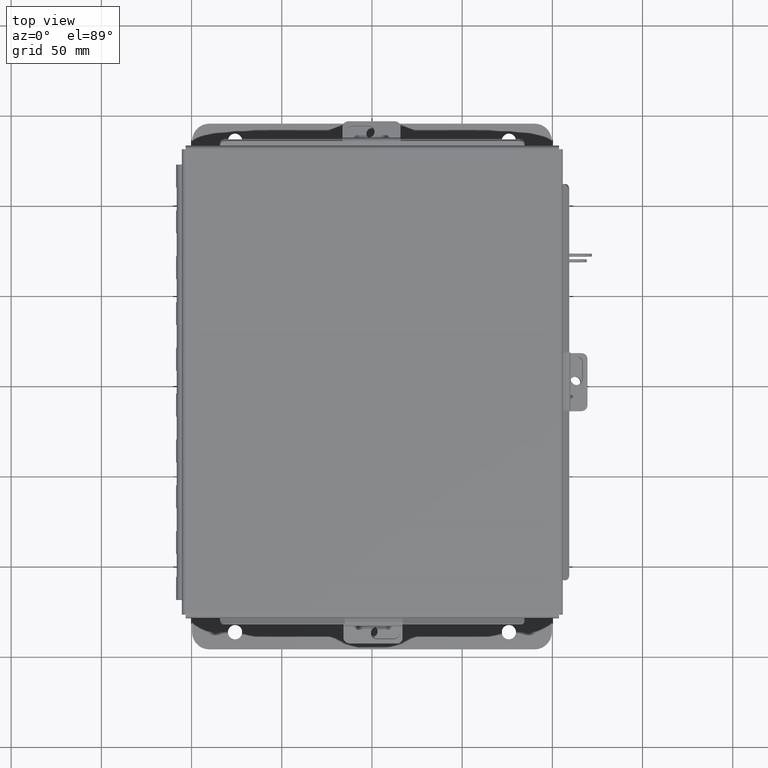
[diagram: clean part render]
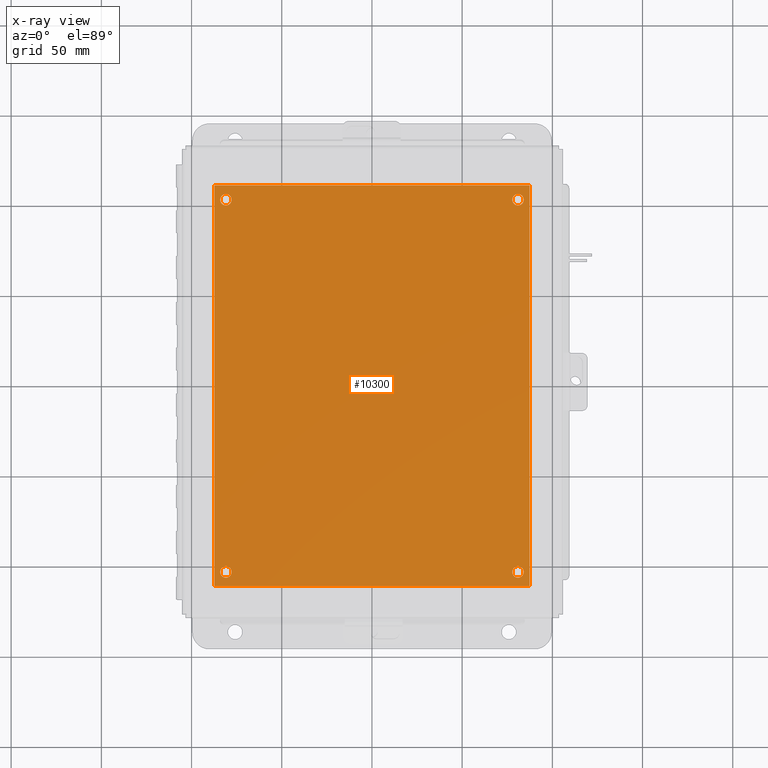
[diagram: x-ray — body ghosted, one internal face saturated and labeled with its STEP entity id]
A machine part, top view, then the same camera in x-ray: the body is ghosted and one INTERNAL B-rep face — a face not visible from any outside direction — is saturated and labeled: STEP entity #10300.
In plain terms, the highlighted planar face has unit normal (0, 0, -1).
Its self-contained STEP definition (entity closure, byte-faithful):
#22 = DIRECTION ( 'NONE',  ( -1.000000000000000000, 0.0000000000000000000, 0.0000000000000000000 ) ) ;
#263 = ORIENTED_EDGE ( 'NONE', *, *, #15227, .T. ) ;
#309 = AXIS2_PLACEMENT_3D ( 'NONE', #6546, #12936, #346 ) ;
#346 = DIRECTION ( 'NONE',  ( -1.000000000000000000, 0.0000000000000000000, 0.0000000000000000000 ) ) ;
#544 = CARTESIAN_POINT ( 'NONE',  ( 6.750000000000003600, 0.3120000000000020500, -0.07470000000000003000 ) ) ;
#588 = AXIS2_PLACEMENT_3D ( 'NONE', #12730, #15396, #4550 ) ;
#617 = VERTEX_POINT ( 'NONE', #15194 ) ;
#689 = PLANE ( 'NONE',  #6242 ) ;
#691 = FACE_OUTER_BOUND ( 'NONE', #2898, .T. ) ;
#747 = VECTOR ( 'NONE', #2718, 39.37007874015748100 ) ;
#808 = EDGE_CURVE ( 'NONE', #15754, #4264, #6498, .T. ) ;
#1048 = VERTEX_POINT ( 'NONE', #2221 ) ;
#1062 = VERTEX_POINT ( 'NONE', #3437 ) ;
#1214 = DIRECTION ( 'NONE',  ( -0.0000000000000000000, -0.0000000000000000000, 1.000000000000000000 ) ) ;
#1554 = VECTOR ( 'NONE', #4784, 39.37007874015748100 ) ;
#1671 = ORIENTED_EDGE ( 'NONE', *, *, #4034, .F. ) ;
#1726 = CIRCLE ( 'NONE', #2596, 0.1250000000000000600 ) ;
#1737 = VECTOR ( 'NONE', #14516, 39.37007874015748100 ) ;
#1996 = CIRCLE ( 'NONE', #11486, 0.1250000000000000000 ) ;
#2221 = CARTESIAN_POINT ( 'NONE',  ( 6.875000000000000000, 8.750000000000000000, -0.07470000000000003000 ) ) ;
#2278 = DIRECTION ( 'NONE',  ( -0.0000000000000000000, -0.0000000000000000000, 1.000000000000000000 ) ) ;
#2596 = AXIS2_PLACEMENT_3D ( 'NONE', #4690, #13573, #5942 ) ;
#2718 = DIRECTION ( 'NONE',  ( 0.0000000000000000000, 1.000000000000000000, 0.0000000000000000000 ) ) ;
#2836 = DIRECTION ( 'NONE',  ( -0.0000000000000000000, -0.0000000000000000000, 1.000000000000000000 ) ) ;
#2898 = EDGE_LOOP ( 'NONE', ( #14255, #1671, #14018, #11864 ) ) ;
#3113 = AXIS2_PLACEMENT_3D ( 'NONE', #11879, #10105, #4529 ) ;
#3437 = CARTESIAN_POINT ( 'NONE',  ( 0.1250000000000019200, 0.3120000000000015000, -0.07470000000000003000 ) ) ;
#4034 = EDGE_CURVE ( 'NONE', #1048, #6929, #4959, .T. ) ;
#4056 = FACE_BOUND ( 'NONE', #6095, .T. ) ;
#4118 = LINE ( 'NONE', #9059, #747 ) ;
#4197 = AXIS2_PLACEMENT_3D ( 'NONE', #9915, #2278, #11189 ) ;
#4264 = VERTEX_POINT ( 'NONE', #13427 ) ;
#4272 = EDGE_CURVE ( 'NONE', #6929, #7020, #11916, .T. ) ;
#4476 = FACE_BOUND ( 'NONE', #6879, .T. ) ;
#4529 = DIRECTION ( 'NONE',  ( -1.000000000000000000, 0.0000000000000000000, 0.0000000000000000000 ) ) ;
#4543 = DIRECTION ( 'NONE',  ( 0.0000000000000000000, 0.0000000000000000000, -1.000000000000000000 ) ) ;
#4550 = DIRECTION ( 'NONE',  ( -1.000000000000000000, 0.0000000000000000000, 0.0000000000000000000 ) ) ;
#4690 = CARTESIAN_POINT ( 'NONE',  ( 0.2500000000000020000, 0.3120000000000015000, -0.07470000000000003000 ) ) ;
#4784 = DIRECTION ( 'NONE',  ( -1.000000000000000000, -0.0000000000000000000, -0.0000000000000000000 ) ) ;
#4832 = EDGE_CURVE ( 'NONE', #617, #5872, #7930, .T. ) ;
#4921 = CIRCLE ( 'NONE', #4197, 0.1250000000000004400 ) ;
#4959 = LINE ( 'NONE', #8613, #1554 ) ;
#5010 = DIRECTION ( 'NONE',  ( 1.000000000000000000, 0.0000000000000000000, 0.0000000000000000000 ) ) ;
#5411 = ORIENTED_EDGE ( 'NONE', *, *, #5462, .T. ) ;
#5462 = EDGE_CURVE ( 'NONE', #6969, #13572, #12323, .T. ) ;
#5632 = EDGE_LOOP ( 'NONE', ( #5411, #13808 ) ) ;
#5680 = AXIS2_PLACEMENT_3D ( 'NONE', #15322, #7672, #22 ) ;
#5872 = VERTEX_POINT ( 'NONE', #544 ) ;
#5930 = AXIS2_PLACEMENT_3D ( 'NONE', #8825, #1214, #10126 ) ;
#5942 = DIRECTION ( 'NONE',  ( -1.000000000000000000, 0.0000000000000000000, 0.0000000000000000000 ) ) ;
#6002 = VERTEX_POINT ( 'NONE', #6627 ) ;
#6095 = EDGE_LOOP ( 'NONE', ( #13606, #13470 ) ) ;
#6242 = AXIS2_PLACEMENT_3D ( 'NONE', #8320, #4543, #13433 ) ;
#6498 = CIRCLE ( 'NONE', #588, 0.1250000000000000000 ) ;
#6546 = CARTESIAN_POINT ( 'NONE',  ( 6.625000000000002700, 0.3120000000000020500, -0.07470000000000003000 ) ) ;
#6627 = CARTESIAN_POINT ( 'NONE',  ( 0.3750000000000020000, 0.3120000000000015000, -0.07470000000000003000 ) ) ;
#6879 = EDGE_LOOP ( 'NONE', ( #12828, #12017 ) ) ;
#6929 = VERTEX_POINT ( 'NONE', #12428 ) ;
#6947 = CIRCLE ( 'NONE', #5930, 0.1250000000000004400 ) ;
#6969 = VERTEX_POINT ( 'NONE', #16331 ) ;
#7020 = VERTEX_POINT ( 'NONE', #16427 ) ;
#7024 = CARTESIAN_POINT ( 'NONE',  ( 0.0000000000000000000, 0.0000000000000000000, -0.07470000000000003000 ) ) ;
#7525 = EDGE_CURVE ( 'NONE', #6002, #1062, #1726, .T. ) ;
#7672 = DIRECTION ( 'NONE',  ( -0.0000000000000000000, -0.0000000000000000000, 1.000000000000000000 ) ) ;
#7734 = EDGE_CURVE ( 'NONE', #1062, #6002, #15497, .T. ) ;
#7815 = EDGE_CURVE ( 'NONE', #13914, #1048, #4118, .T. ) ;
#7930 = CIRCLE ( 'NONE', #309, 0.1250000000000004400 ) ;
#7947 = VECTOR ( 'NONE', #5010, 39.37007874015748100 ) ;
#8320 = CARTESIAN_POINT ( 'NONE',  ( 0.0000000000000000000, 0.0000000000000000000, -0.07470000000000003000 ) ) ;
#8327 = EDGE_CURVE ( 'NONE', #5872, #617, #4921, .T. ) ;
#8537 = CARTESIAN_POINT ( 'NONE',  ( 6.875000000000000000, 0.0000000000000000000, -0.07470000000000003000 ) ) ;
#8613 = CARTESIAN_POINT ( 'NONE',  ( 0.0000000000000000000, 8.750000000000000000, -0.07470000000000003000 ) ) ;
#8825 = CARTESIAN_POINT ( 'NONE',  ( 6.625000000000001800, 8.438000000000000600, -0.07470000000000003000 ) ) ;
#9059 = CARTESIAN_POINT ( 'NONE',  ( 6.875000000000000000, 0.0000000000000000000, -0.07470000000000003000 ) ) ;
#9915 = CARTESIAN_POINT ( 'NONE',  ( 6.625000000000002700, 0.3120000000000020500, -0.07470000000000003000 ) ) ;
#10105 = DIRECTION ( 'NONE',  ( -0.0000000000000000000, -0.0000000000000000000, 1.000000000000000000 ) ) ;
#10126 = DIRECTION ( 'NONE',  ( -1.000000000000000000, 0.0000000000000000000, 0.0000000000000000000 ) ) ;
#10300 = ADVANCED_FACE ( 'NONE', ( #4476, #4056, #10861, #11263, #691 ), #689, .T. ) ;
#10424 = CARTESIAN_POINT ( 'NONE',  ( 6.500000000000000900, 8.438000000000000600, -0.07470000000000003000 ) ) ;
#10478 = CARTESIAN_POINT ( 'NONE',  ( 0.2500000000000003300, 8.437999999999998800, -0.07470000000000003000 ) ) ;
#10861 = FACE_BOUND ( 'NONE', #5632, .T. ) ;
#11189 = DIRECTION ( 'NONE',  ( -1.000000000000000000, 0.0000000000000000000, 0.0000000000000000000 ) ) ;
#11263 = FACE_BOUND ( 'NONE', #14039, .T. ) ;
#11356 = LINE ( 'NONE', #16424, #7947 ) ;
#11486 = AXIS2_PLACEMENT_3D ( 'NONE', #10478, #2836, #11751 ) ;
#11751 = DIRECTION ( 'NONE',  ( -1.000000000000000000, 0.0000000000000000000, 0.0000000000000000000 ) ) ;
#11864 = ORIENTED_EDGE ( 'NONE', *, *, #15696, .F. ) ;
#11879 = CARTESIAN_POINT ( 'NONE',  ( 6.625000000000001800, 8.438000000000000600, -0.07470000000000003000 ) ) ;
#11916 = LINE ( 'NONE', #7024, #1737 ) ;
#12017 = ORIENTED_EDGE ( 'NONE', *, *, #7734, .T. ) ;
#12323 = CIRCLE ( 'NONE', #3113, 0.1250000000000004400 ) ;
#12428 = CARTESIAN_POINT ( 'NONE',  ( 0.0000000000000000000, 8.750000000000000000, -0.07470000000000003000 ) ) ;
#12730 = CARTESIAN_POINT ( 'NONE',  ( 0.2500000000000003300, 8.437999999999998800, -0.07470000000000003000 ) ) ;
#12746 = CARTESIAN_POINT ( 'NONE',  ( 0.1250000000000003300, 8.437999999999998800, -0.07470000000000003000 ) ) ;
#12828 = ORIENTED_EDGE ( 'NONE', *, *, #7525, .T. ) ;
#12936 = DIRECTION ( 'NONE',  ( -0.0000000000000000000, -0.0000000000000000000, 1.000000000000000000 ) ) ;
#13427 = CARTESIAN_POINT ( 'NONE',  ( 0.3750000000000003900, 8.437999999999998800, -0.07470000000000003000 ) ) ;
#13433 = DIRECTION ( 'NONE',  ( -1.000000000000000000, 0.0000000000000000000, -0.0000000000000000000 ) ) ;
#13470 = ORIENTED_EDGE ( 'NONE', *, *, #4832, .T. ) ;
#13572 = VERTEX_POINT ( 'NONE', #10424 ) ;
#13573 = DIRECTION ( 'NONE',  ( -0.0000000000000000000, -0.0000000000000000000, 1.000000000000000000 ) ) ;
#13606 = ORIENTED_EDGE ( 'NONE', *, *, #8327, .T. ) ;
#13808 = ORIENTED_EDGE ( 'NONE', *, *, #16390, .T. ) ;
#13914 = VERTEX_POINT ( 'NONE', #8537 ) ;
#14018 = ORIENTED_EDGE ( 'NONE', *, *, #7815, .F. ) ;
#14039 = EDGE_LOOP ( 'NONE', ( #263, #14240 ) ) ;
#14240 = ORIENTED_EDGE ( 'NONE', *, *, #808, .T. ) ;
#14255 = ORIENTED_EDGE ( 'NONE', *, *, #4272, .F. ) ;
#14516 = DIRECTION ( 'NONE',  ( -0.0000000000000000000, -1.000000000000000000, -0.0000000000000000000 ) ) ;
#15194 = CARTESIAN_POINT ( 'NONE',  ( 6.500000000000002700, 0.3120000000000020500, -0.07470000000000003000 ) ) ;
#15227 = EDGE_CURVE ( 'NONE', #4264, #15754, #1996, .T. ) ;
#15322 = CARTESIAN_POINT ( 'NONE',  ( 0.2500000000000020000, 0.3120000000000015000, -0.07470000000000003000 ) ) ;
#15396 = DIRECTION ( 'NONE',  ( -0.0000000000000000000, -0.0000000000000000000, 1.000000000000000000 ) ) ;
#15497 = CIRCLE ( 'NONE', #5680, 0.1250000000000000600 ) ;
#15696 = EDGE_CURVE ( 'NONE', #7020, #13914, #11356, .T. ) ;
#15754 = VERTEX_POINT ( 'NONE', #12746 ) ;
#16331 = CARTESIAN_POINT ( 'NONE',  ( 6.750000000000001800, 8.438000000000000600, -0.07470000000000003000 ) ) ;
#16390 = EDGE_CURVE ( 'NONE', #13572, #6969, #6947, .T. ) ;
#16424 = CARTESIAN_POINT ( 'NONE',  ( 0.0000000000000000000, 0.0000000000000000000, -0.07470000000000003000 ) ) ;
#16427 = CARTESIAN_POINT ( 'NONE',  ( 0.0000000000000000000, 0.0000000000000000000, -0.07470000000000003000 ) ) ;